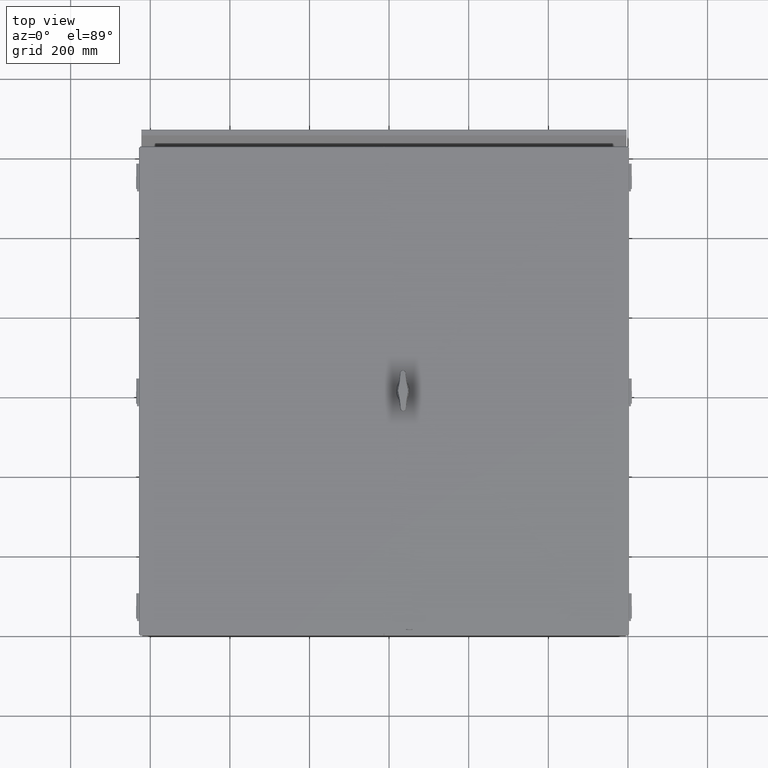
[diagram: clean part render]
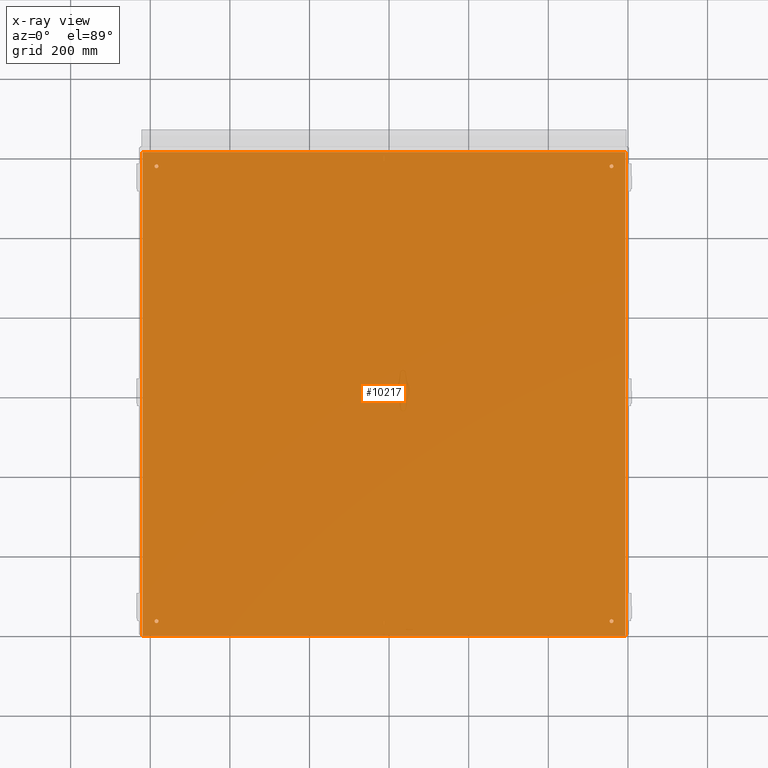
[diagram: x-ray — body ghosted, one internal face saturated and labeled with its STEP entity id]
A machine part, top view, then the same camera in x-ray: the body is ghosted and one INTERNAL B-rep face — a face not visible from any outside direction — is saturated and labeled: STEP entity #10217.
In plain terms, the highlighted planar face has unit normal (0, -0, 1).
Its self-contained STEP definition (entity closure, byte-faithful):
#635=FACE_BOUND($,#1897,.T.);
#636=FACE_BOUND($,#1898,.T.);
#637=FACE_BOUND($,#1899,.T.);
#638=FACE_BOUND($,#1900,.T.);
#885=PLANE($,#10947);
#1287=FACE_OUTER_BOUND($,#1896,.T.);
#1896=EDGE_LOOP($,(#7216,#7217,#7218,#7219));
#1897=EDGE_LOOP($,(#7220));
#1898=EDGE_LOOP($,(#7221));
#1899=EDGE_LOOP($,(#7222));
#1900=EDGE_LOOP($,(#7223));
#2665=CIRCLE($,#10940,0.1875);
#2666=CIRCLE($,#10942,0.1875);
#2667=CIRCLE($,#10944,0.1875);
#2668=CIRCLE($,#10946,0.1875);
#3171=LINE($,#15264,#3967);
#3177=LINE($,#15284,#3973);
#3179=LINE($,#15287,#3975);
#3181=LINE($,#15299,#3977);
#3967=VECTOR($,#12203,47.8126);
#3973=VECTOR($,#12229,47.8126);
#3975=VECTOR($,#12233,47.7501);
#3977=VECTOR($,#12247,47.7501);
#4732=VERTEX_POINT($,#15255);
#4733=VERTEX_POINT($,#15259);
#4736=VERTEX_POINT($,#15275);
#4737=VERTEX_POINT($,#15279);
#4742=VERTEX_POINT($,#15301);
#4743=VERTEX_POINT($,#15304);
#4744=VERTEX_POINT($,#15307);
#4745=VERTEX_POINT($,#15310);
#5679=EDGE_CURVE($,#4732,#4733,#3171,.T.);
#5689=EDGE_CURVE($,#4736,#4737,#3177,.T.);
#5691=EDGE_CURVE($,#4736,#4733,#3179,.T.);
#5697=EDGE_CURVE($,#4732,#4737,#3181,.T.);
#5698=EDGE_CURVE($,#4742,#4742,#2665,.T.);
#5699=EDGE_CURVE($,#4743,#4743,#2666,.T.);
#5700=EDGE_CURVE($,#4744,#4744,#2667,.T.);
#5701=EDGE_CURVE($,#4745,#4745,#2668,.T.);
#7216=ORIENTED_EDGE($,*,*,#5679,.T.);
#7217=ORIENTED_EDGE($,*,*,#5691,.F.);
#7218=ORIENTED_EDGE($,*,*,#5689,.T.);
#7219=ORIENTED_EDGE($,*,*,#5697,.F.);
#7220=ORIENTED_EDGE($,*,*,#5698,.T.);
#7221=ORIENTED_EDGE($,*,*,#5699,.T.);
#7222=ORIENTED_EDGE($,*,*,#5700,.T.);
#7223=ORIENTED_EDGE($,*,*,#5701,.T.);
#10217=ADVANCED_FACE($,(#1287,#635,#636,#637,#638),#885,.T.);
#10940=AXIS2_PLACEMENT_3D($,#15302,#12250,#12251);
#10942=AXIS2_PLACEMENT_3D($,#15305,#12254,#12255);
#10944=AXIS2_PLACEMENT_3D($,#15308,#12258,#12259);
#10946=AXIS2_PLACEMENT_3D($,#15311,#12262,#12263);
#10947=AXIS2_PLACEMENT_3D($,#15312,#12264,#12265);
#12203=DIRECTION($,(-2.34031393022944E-016,1.,0.));
#12229=DIRECTION($,(3.06252018213618E-016,-1.,0.));
#12233=DIRECTION($,(1.,0.,0.));
#12247=DIRECTION($,(-1.,0.,0.));
#12250=DIRECTION('center_axis',(0.,0.,-1.));
#12251=DIRECTION('ref_axis',(-1.,0.,0.));
#12254=DIRECTION('center_axis',(0.,0.,-1.));
#12255=DIRECTION('ref_axis',(-1.,0.,0.));
#12258=DIRECTION('center_axis',(0.,0.,-1.));
#12259=DIRECTION('ref_axis',(-1.,0.,0.));
#12262=DIRECTION('center_axis',(0.,0.,-1.));
#12263=DIRECTION('ref_axis',(-1.,0.,0.));
#12264=DIRECTION('center_axis',(0.,0.,1.));
#12265=DIRECTION('ref_axis',(1.,0.,0.));
#15255=CARTESIAN_POINT('',(47.78135,-7.3134810319669E-018,0.0937));
#15259=CARTESIAN_POINT('',(47.78135,47.8126,0.0937));
#15264=CARTESIAN_POINT($,(47.78135,35.85945,0.0937));
#15275=CARTESIAN_POINT('',(0.0312499999999854,47.8126,0.0937));
#15279=CARTESIAN_POINT('',(0.03125,9.5675531183387E-018,0.0937));
#15284=CARTESIAN_POINT($,(0.0312499999999954,11.95315,0.0937));
#15287=CARTESIAN_POINT($,(47.8126,47.8126,0.0937));
#15299=CARTESIAN_POINT($,(0.,0.,0.0937));
#15301=CARTESIAN_POINT('',(1.5938,1.4063,0.0937));
#15302=CARTESIAN_POINT('Origin',(1.4063,1.4063,0.0937));
#15304=CARTESIAN_POINT('',(1.59379999999999,46.4063,0.0937));
#15305=CARTESIAN_POINT('Origin',(1.40629999999999,46.4063,0.0937));
#15307=CARTESIAN_POINT('',(46.5938,46.4063,0.0937));
#15308=CARTESIAN_POINT('Origin',(46.4063,46.4063,0.0937));
#15310=CARTESIAN_POINT('',(46.5938,1.4063,0.0937));
#15311=CARTESIAN_POINT('Origin',(46.4063,1.4063,0.0937));
#15312=CARTESIAN_POINT('Origin',(23.9063,23.9063,0.0937));